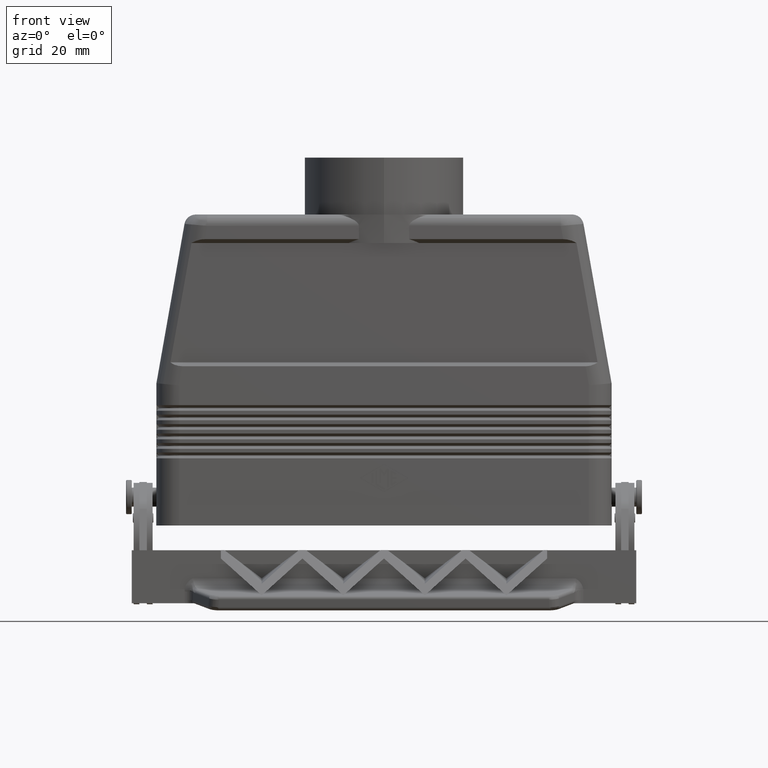
[diagram: clean part render]
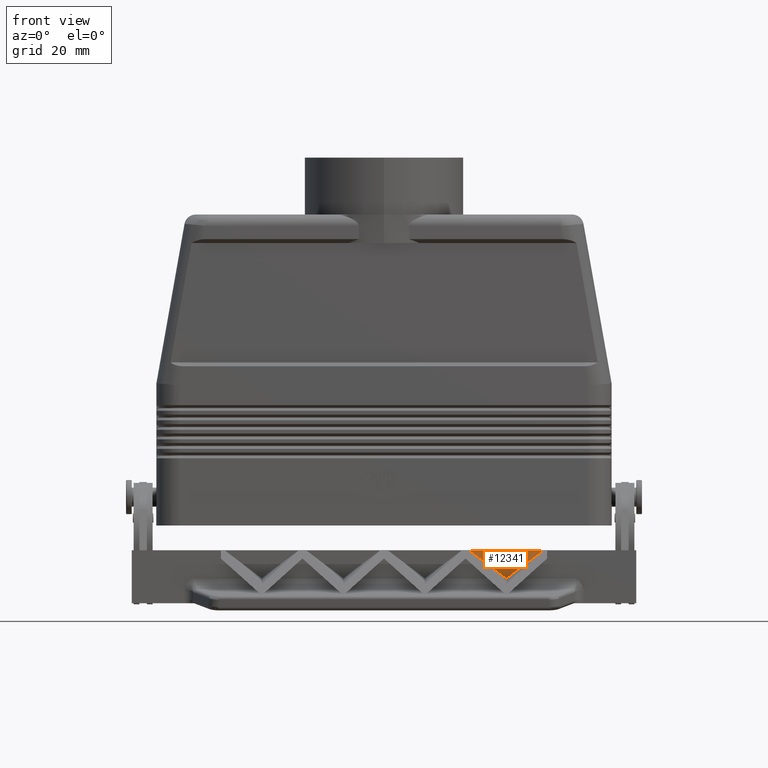
[diagram: same view with one face highlighted and labeled with its STEP entity id]
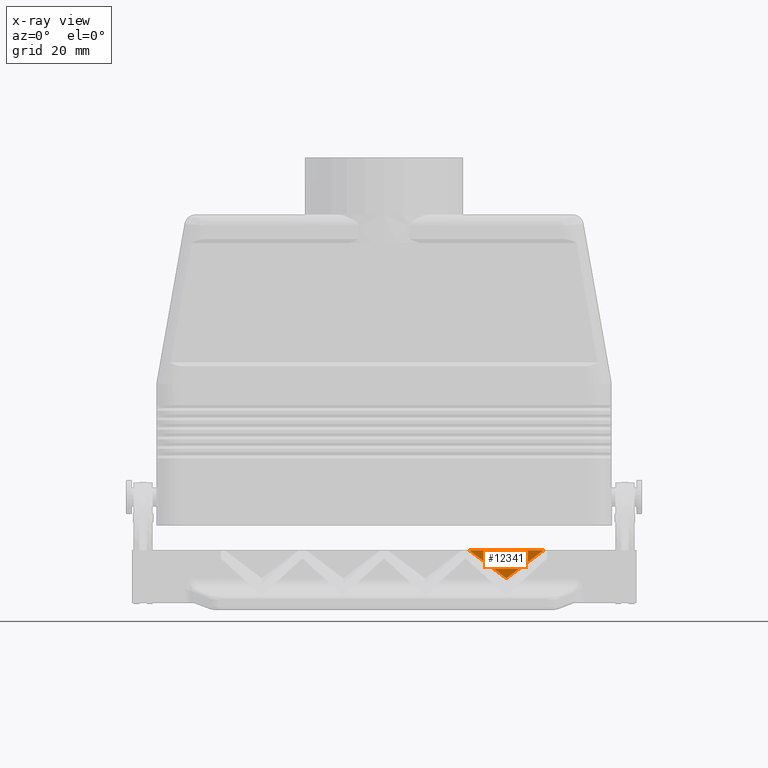
[diagram: x-ray of the same camera — body ghosted, the highlighted face saturated]
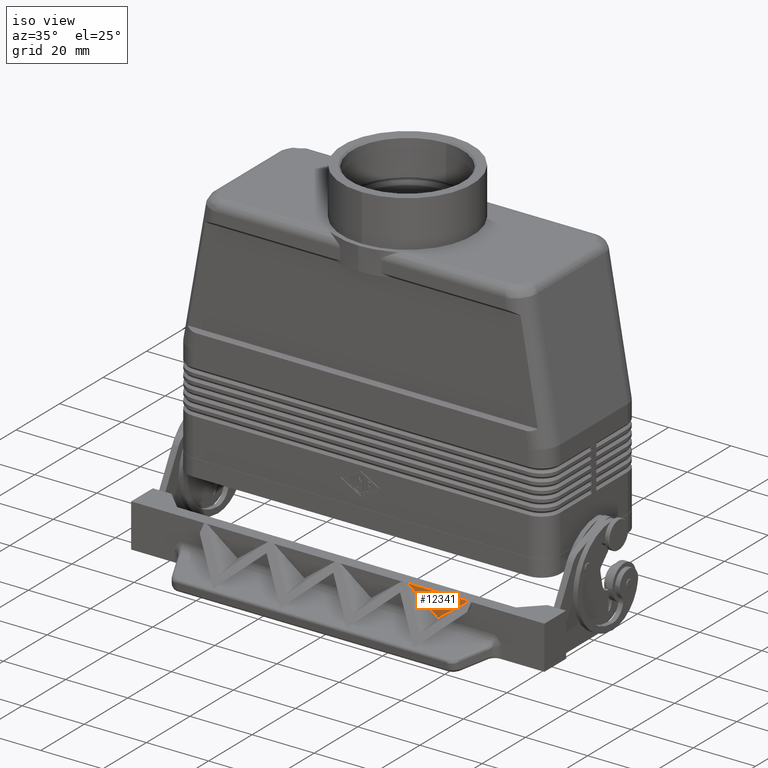
[diagram: same view with one face highlighted and labeled with its STEP entity id]
A machine part, front view. The second image highlights one B-rep face of the part: STEP entity #12341.
The next image is the same camera in x-ray: the body ghosted, the highlighted face saturated — about 0% of this face is hidden behind the body in this view.
A second angle (iso view) of the same face is appended — the face is thin or edge-on in the first view.
In plain terms, the highlighted face is a freeform B-spline surface patch.
Its self-contained STEP definition (entity closure, byte-faithful):
#10875=CARTESIAN_POINT('',(22.448327467272193,-32.050000000000026,-6.500000000000000));
#10876=VERTEX_POINT('',#10875);
#10905=CARTESIAN_POINT('',(42.051672532727778,-32.050000000000040,-6.500000000000000));
#10906=VERTEX_POINT('',#10905);
#11519=CARTESIAN_POINT('',(32.249999999999993,-32.050000000000033,-13.906793771699615));
#11520=VERTEX_POINT('',#11519);
#11527=CARTESIAN_POINT('',(22.448327467272193,-32.050000000000026,-6.500000000000000));
#11528=DIRECTION('',(0.797824818967458,-5.783591E-016,-0.602889341620453));
#11529=VECTOR('',#11528,12.285494634540312);
#11530=LINE('',#11527,#11529);
#11531=EDGE_CURVE('',#10876,#11520,#11530,.T.);
#11604=CARTESIAN_POINT('',(32.249999999999993,-32.050000000000033,-13.906793771699615));
#11605=DIRECTION('',(0.797824818967457,-5.783591E-016,0.602889341620453));
#11606=VECTOR('',#11605,12.285494634540301);
#11607=LINE('',#11604,#11606);
#11608=EDGE_CURVE('',#11520,#10906,#11607,.T.);
#12156=CARTESIAN_POINT('',(22.448327467272193,-32.050000000000026,-6.500000000000000));
#12157=DIRECTION('',(1.0,0.0,0.0));
#12158=VECTOR('',#12157,19.603345065455585);
#12159=LINE('',#12156,#12158);
#12160=EDGE_CURVE('',#10876,#10906,#12159,.T.);
#12331=CARTESIAN_POINT('',(22.448327467272193,-32.050000000000026,-6.500000000000000));
#12332=CARTESIAN_POINT('',(22.448327467272193,-32.050000000000026,-13.906793771699618));
#12333=CARTESIAN_POINT('',(42.051672532727792,-32.050000000000033,-6.500000000000000));
#12334=CARTESIAN_POINT('',(42.051672532727792,-32.050000000000026,-13.906793771699618));
#12335=B_SPLINE_SURFACE_WITH_KNOTS('',1,1,((#12331,#12333),(#12332,#12334)),.UNSPECIFIED.,.F.,.F.,.U.,(2,2),(2,2),(0.0,7.406793771699618),(0.0,19.603345065455599),.UNSPECIFIED.);
#12336=ORIENTED_EDGE('',*,*,#11608,.T.);
#12337=ORIENTED_EDGE('',*,*,#12160,.F.);
#12338=ORIENTED_EDGE('',*,*,#11531,.T.);
#12339=EDGE_LOOP('',(#12336,#12337,#12338));
#12340=FACE_OUTER_BOUND('',#12339,.T.);
#12341=ADVANCED_FACE('',(#12340),#12335,.T.);